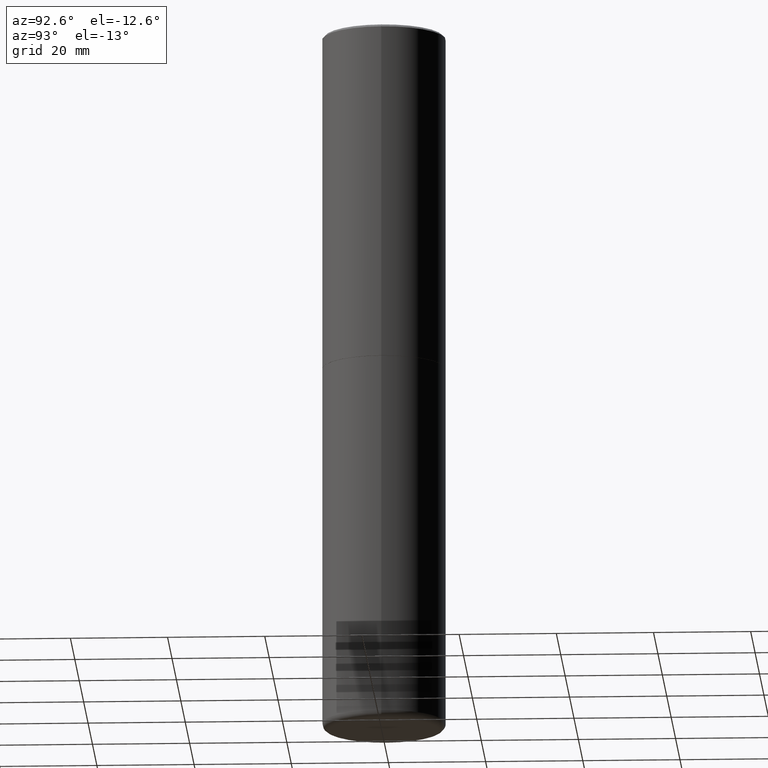
[diagram: clean part render]
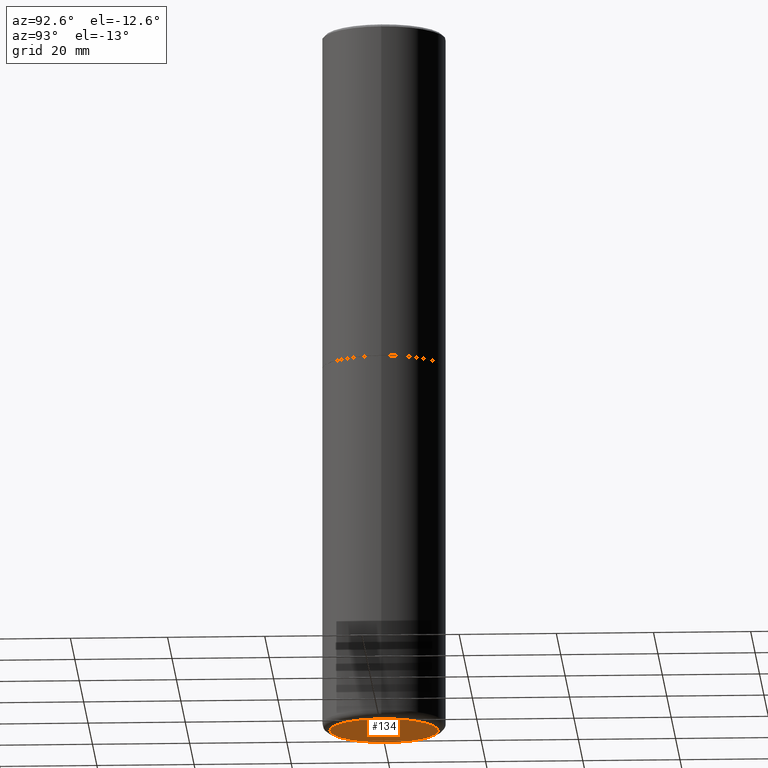
[diagram: same view with one face highlighted and labeled with its STEP entity id]
A machine part, auxiliary view. The second image highlights one B-rep face of the part: STEP entity #134.
In plain terms, the highlighted planar face has unit normal (0, -0, -1).
Its self-contained STEP definition (entity closure, byte-faithful):
#17 = DIRECTION ( 'NONE',  ( 1.000000000000000000, -6.982962677686262766E-15, 0.000000000000000000 ) ) ;
#44 = CIRCLE ( 'NONE', #104, 0.4400000000000000022 ) ;
#71 = VERTEX_POINT ( 'NONE', #171 ) ;
#83 = ORIENTED_EDGE ( 'NONE', *, *, #397, .F. ) ;
#104 = AXIS2_PLACEMENT_3D ( 'NONE', #337, #271, #180 ) ;
#106 = CARTESIAN_POINT ( 'NONE',  ( 1.406144563556453767E-28, -2.007601769834809252E-14, -5.750000000000000888 ) ) ;
#132 = CIRCLE ( 'NONE', #145, 0.4400000000000000022 ) ;
#134 = ADVANCED_FACE ( 'NONE', ( #298 ), #371, .T. ) ;
#145 = AXIS2_PLACEMENT_3D ( 'NONE', #106, #303, #17 ) ;
#167 = DIRECTION ( 'NONE',  ( 2.438088387897960049E-29, -3.491481338843145188E-15, -1.000000000000000000 ) ) ;
#171 = CARTESIAN_POINT ( 'NONE',  ( 0.4400000000000000022, -2.314852127653004609E-14, -5.750000000000000888 ) ) ;
#180 = DIRECTION ( 'NONE',  ( 1.000000000000000000, -6.982962677686262766E-15, 0.000000000000000000 ) ) ;
#231 = CARTESIAN_POINT ( 'NONE',  ( 4.089694968291764333E-29, -3.435613221068401065E-14, -5.750000000000000888 ) ) ;
#232 = EDGE_LOOP ( 'NONE', ( #403, #83 ) ) ;
#265 = AXIS2_PLACEMENT_3D ( 'NONE', #231, #167, #365 ) ;
#271 = DIRECTION ( 'NONE',  ( -2.445468806185136597E-29, 3.491481338843145583E-15, 1.000000000000000000 ) ) ;
#298 = FACE_OUTER_BOUND ( 'NONE', #232, .T. ) ;
#303 = DIRECTION ( 'NONE',  ( -2.445468806185136597E-29, 3.491481338843145583E-15, 1.000000000000000000 ) ) ;
#337 = CARTESIAN_POINT ( 'NONE',  ( 1.406144563556453767E-28, -2.007601769834809252E-14, -5.750000000000000888 ) ) ;
#341 = VERTEX_POINT ( 'NONE', #375 ) ;
#365 = DIRECTION ( 'NONE',  ( -1.000000000000000000, 6.982962677686265922E-15, -4.876176775795935793E-29 ) ) ;
#371 = PLANE ( 'NONE',  #265 ) ;
#375 = CARTESIAN_POINT ( 'NONE',  ( -0.4400000000000000022, -1.663172240011032058E-14, -5.750000000000000888 ) ) ;
#384 = EDGE_CURVE ( 'NONE', #71, #341, #132, .T. ) ;
#397 = EDGE_CURVE ( 'NONE', #341, #71, #44, .T. ) ;
#403 = ORIENTED_EDGE ( 'NONE', *, *, #384, .F. ) ;